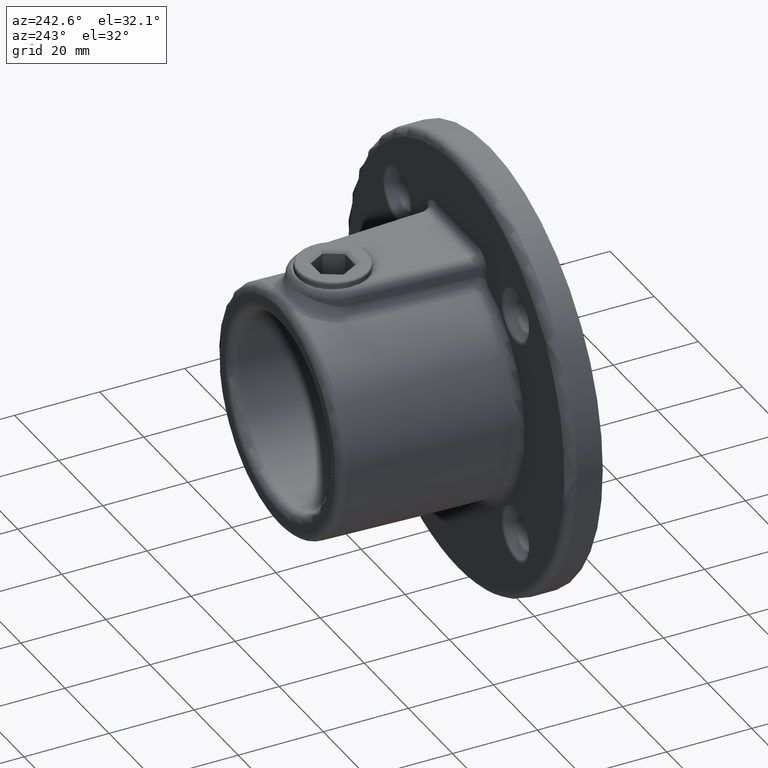
[diagram: clean part render]
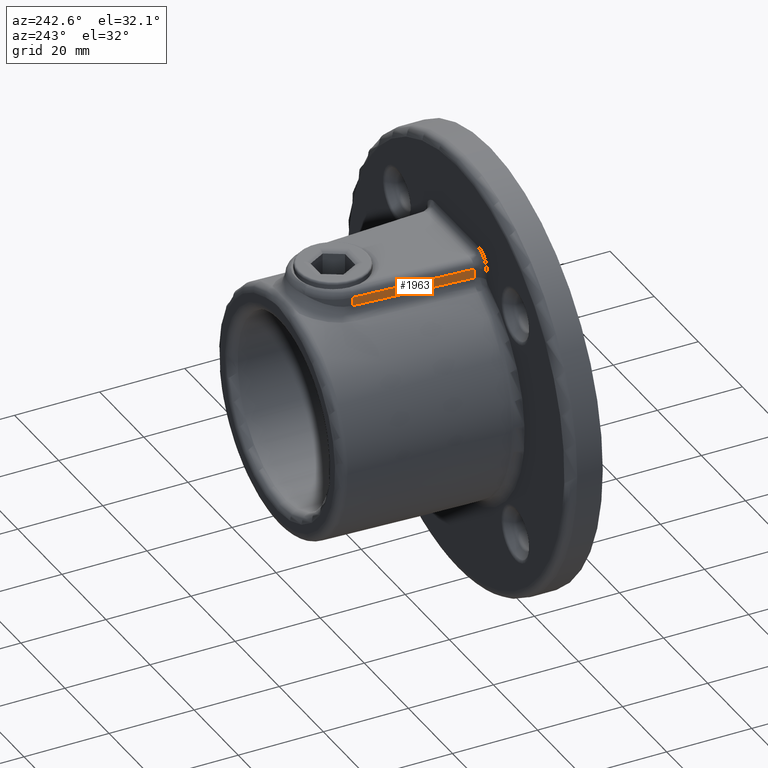
[diagram: same view with one face highlighted and labeled with its STEP entity id]
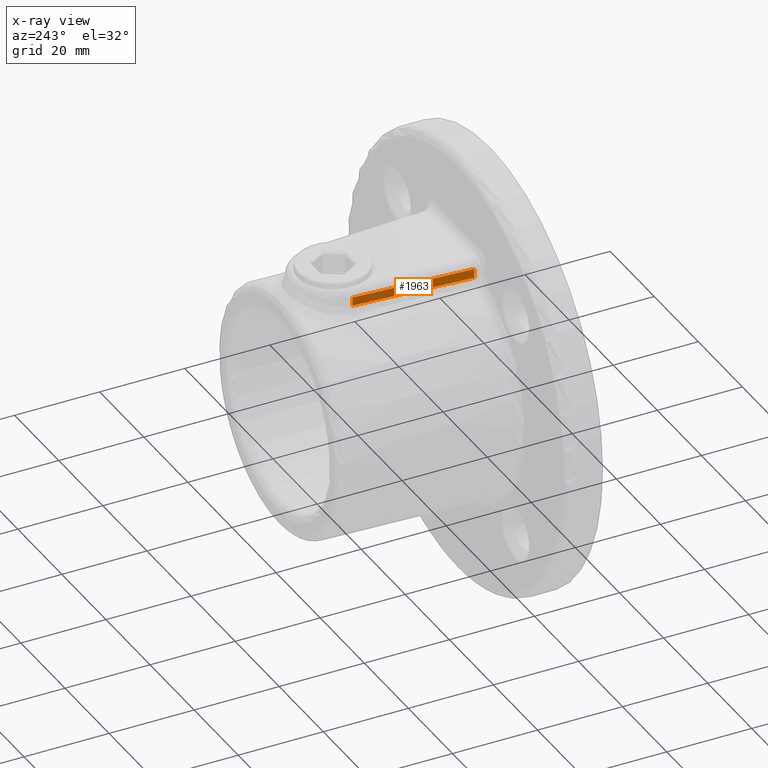
[diagram: x-ray of the same camera — body ghosted, the highlighted face saturated]
A machine part, auxiliary view. The second image highlights one B-rep face of the part: STEP entity #1963.
The next image is the same camera in x-ray: the body ghosted, the highlighted face saturated — about 0% of this face is hidden behind the body in this view.
In plain terms, the highlighted planar face has unit normal (0.9979, -0.064, 0).
Its self-contained STEP definition (entity closure, byte-faithful):
#115 = CARTESIAN_POINT ( 'NONE',  ( -11.76101184838015712, 9.871949405967562541, 28.34088511955215850 ) ) ;
#205 = VERTEX_POINT ( 'NONE', #1171 ) ;
#258 = EDGE_CURVE ( 'NONE', #205, #2449, #2591, .T. ) ;
#314 = DIRECTION ( 'NONE',  ( 0.06402529701625196690, 0.9979482758850684032, 0.000000000000000000 ) ) ;
#642 = EDGE_CURVE ( 'NONE', #1372, #205, #2919, .T. ) ;
#700 = EDGE_CURVE ( 'NONE', #2449, #1566, #2602, .T. ) ;
#777 = EDGE_CURVE ( 'NONE', #1566, #1372, #2062, .T. ) ;
#939 = CARTESIAN_POINT ( 'NONE',  ( -9.979482758850686253, 37.64025297016252125, 28.47440444304379170 ) ) ;
#943 = DIRECTION ( 'NONE',  ( 0.06402529701625196690, 0.9979482758850684032, -0.000000000000000000 ) ) ;
#944 = CARTESIAN_POINT ( 'NONE',  ( -11.76101184838016067, 9.871949405967496816, 30.50000000000000000 ) ) ;
#1171 = CARTESIAN_POINT ( 'NONE',  ( -9.979482758850686253, 37.64025297016252125, 28.47440444304379170 ) ) ;
#1173 = PLANE ( 'NONE',  #2205 ) ;
#1372 = VERTEX_POINT ( 'NONE', #1971 ) ;
#1462 = CARTESIAN_POINT ( 'NONE',  ( -10.57463727630389272, 28.36370991208234571, 28.44595829977214763 ) ) ;
#1489 = CARTESIAN_POINT ( 'NONE',  ( -9.979482758850686253, 37.64025297016252125, 32.50000000000000000 ) ) ;
#1566 = VERTEX_POINT ( 'NONE', #944 ) ;
#1576 = EDGE_LOOP ( 'NONE', ( #2733, #2170, #2478, #2111 ) ) ;
#1634 = CARTESIAN_POINT ( 'NONE',  ( -9.979482758850686253, 37.64025297016252125, 30.50000000000000000 ) ) ;
#1722 = CARTESIAN_POINT ( 'NONE',  ( -11.76101184838016067, 9.871949405967496816, 32.50000000000000000 ) ) ;
#1733 = DIRECTION ( 'NONE',  ( -0.000000000000000000, -0.000000000000000000, -1.000000000000000000 ) ) ;
#1851 = VECTOR ( 'NONE', #943, 1000.000000000000227 ) ;
#1963 = ADVANCED_FACE ( 'NONE', ( #2778 ), #1173, .F. ) ;
#1971 = CARTESIAN_POINT ( 'NONE',  ( -9.979482758850686253, 37.64025297016252125, 30.50000000000000000 ) ) ;
#1983 = DIRECTION ( 'NONE',  ( -0.000000000000000000, -0.000000000000000000, 1.000000000000000000 ) ) ;
#2062 = LINE ( 'NONE', #1634, #1851 ) ;
#2111 = ORIENTED_EDGE ( 'NONE', *, *, #642, .T. ) ;
#2170 = ORIENTED_EDGE ( 'NONE', *, *, #700, .T. ) ;
#2205 = AXIS2_PLACEMENT_3D ( 'NONE', #2396, #2831, #314 ) ;
#2334 = CARTESIAN_POINT ( 'NONE',  ( -11.16864806984122893, 19.10499382807523716, 28.40143928531146855 ) ) ;
#2391 = VECTOR ( 'NONE', #1983, 1000.000000000000000 ) ;
#2396 = CARTESIAN_POINT ( 'NONE',  ( -12.00000000000000000, 6.146893451827395438, 32.50000000000000000 ) ) ;
#2449 = VERTEX_POINT ( 'NONE', #115 ) ;
#2457 = VECTOR ( 'NONE', #1733, 1000.000000000000000 ) ;
#2478 = ORIENTED_EDGE ( 'NONE', *, *, #777, .T. ) ;
#2591 =( BOUNDED_CURVE ( )  B_SPLINE_CURVE ( 3, ( #939, #1462, #2334, #2837 ),
 .UNSPECIFIED., .F., .T. ) 
 B_SPLINE_CURVE_WITH_KNOTS ( ( 4, 4 ),
 ( 4.763815577217189734, 4.822033643780645029 ),
 .UNSPECIFIED. ) 
 CURVE ( )  GEOMETRIC_REPRESENTATION_ITEM ( )  RATIONAL_B_SPLINE_CURVE ( ( 1.000000000000000000, 0.9997175746704041188, 0.9997175746704041188, 1.000000000000000000 ) ) 
 REPRESENTATION_ITEM ( '' )  );
#2602 = LINE ( 'NONE', #1722, #2391 ) ;
#2733 = ORIENTED_EDGE ( 'NONE', *, *, #258, .T. ) ;
#2778 = FACE_OUTER_BOUND ( 'NONE', #1576, .T. ) ;
#2831 = DIRECTION ( 'NONE',  ( 0.9979482758850685142, -0.06402529701625198078, 0.000000000000000000 ) ) ;
#2837 = CARTESIAN_POINT ( 'NONE',  ( -11.76101184838015712, 9.871949405967562541, 28.34088511955215850 ) ) ;
#2919 = LINE ( 'NONE', #1489, #2457 ) ;